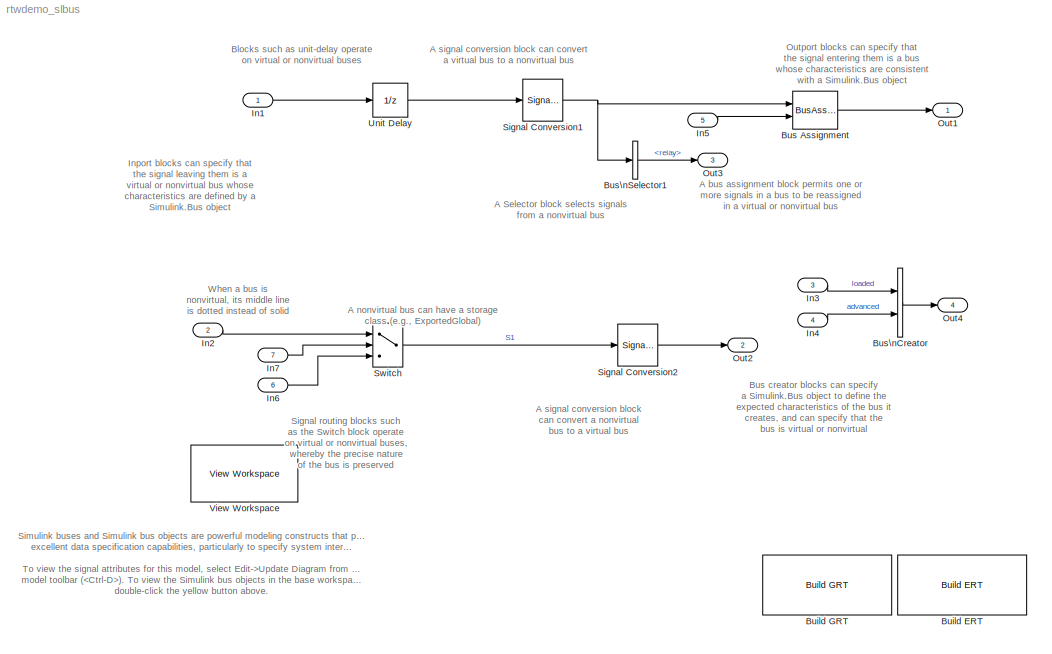
MODEL rtwdemo_slbus
KIND model
CONFIG PostLoadFcn = rtwdemo_slbus_data
BLOCK [Reference] Build ERT  REF=rtwdemowidgets/Build ERT
  Ports = []
  ShowPortLabels = on
  SourceBlock = rtwdemowidgets/Build ERT
  SourceType = Unknown
  attrib_overrides = {}
BLOCK [Reference] Build GRT  REF=rtwdemowidgets/Build GRT
  Ports = []
  ShowPortLabels = on
  SourceBlock = rtwdemowidgets/Build GRT
  SourceType = Unknown
  attrib_overrides = {}
BLOCK [BusAssignment] Bus Assignment
  AssignedSignals = relay
  DialogController = Simulink.DDGSource_Bus
  Ports = [2, 1]
BLOCK [BusCreator] Bus\nCreator
  BusObject = BusObject2
  DialogController = Simulink.DDGSource_Bus
  DisplayOption = bar
  Inputs = 2
  NonVirtualBus = on
  Ports = [2, 1]
  UseBusObject = on
BLOCK [BusSelector] Bus\nSelector1
  DialogController = Simulink.DDGSource_Bus
  OutputSignals = relay
  Ports = [1, 1]
BLOCK [Inport] In1
  BusObject = BusObject1
  IconDisplay = Port number
  LatchInput = off
  Port = 1
  UseBusObject = on
BLOCK [Inport] In2
  BusOutputAsStruct = on
  IconDisplay = Port number
  LatchInput = off
  Port = 2
  UseBusObject = on
BLOCK [Inport] In3
  DataType = boolean
  IconDisplay = Port number
  LatchInput = off
  Port = 3
BLOCK [Inport] In4
  DataType = boolean
  IconDisplay = Port number
  LatchInput = off
  Port = 4
BLOCK [Inport] In5
  DataType = boolean
  IconDisplay = Port number
  LatchInput = off
  Port = 5
BLOCK [Inport] In6
  BusOutputAsStruct = on
  IconDisplay = Port number
  LatchInput = off
  Port = 6
  UseBusObject = on
BLOCK [Inport] In7
  DataType = boolean
  IconDisplay = Port number
  LatchInput = off
  Port = 7
BLOCK [Outport] Out1
  BusObject = BusObject1
  BusOutputAsStruct = off
  IconDisplay = Port number
  UseBusObject = on
BLOCK [Outport] Out2
  BusOutputAsStruct = off
  IconDisplay = Port number
  Port = 2
  UseBusObject = on
BLOCK [Outport] Out3
  BusOutputAsStruct = off
  IconDisplay = Port number
  Port = 3
BLOCK [Outport] Out4
  BusObject = BusObject2
  BusOutputAsStruct = off
  IconDisplay = Port number
  Port = 4
  UseBusObject = on
BLOCK [SignalConversion] Signal Conversion1
  ConversionOutput = Nonvirtual bus
BLOCK [SignalConversion] Signal Conversion2
  ConversionOutput = Virtual bus
BLOCK [Switch] Switch
  Criteria = u2 ~= 0
  InputSameDT = off
  SaturateOnIntegerOverflow = off
  ZeroCross = off
BLOCK [UnitDelay] Unit Delay
BLOCK [Reference] View Workspace  REF=rtwdemowidgets/View Workspace
  Ports = []
  ShowPortLabels = on
  SourceBlock = rtwdemowidgets/View Workspace
  SourceType = Unknown
ANNOTATION (root): A Selector block selects signals\nfrom a nonvirtual bus
ANNOTATION (root): A bus assignment block permits one or\nmore signals in a bus to be reassigned\nin a virtual or nonvirtual bus
ANNOTATION (root): A nonvirtual bus can have a storage\nclass (e.g., ExportedGlobal)
ANNOTATION (root): A signal conversion block can convert\na virtual bus to a nonvirtual bus
ANNOTATION (root): A signal conversion block \ncan convert a nonvirtual \nbus to a virtual bus
ANNOTATION (root): Blocks such as unit-delay operate\non virtual or nonvirtual buses
ANNOTATION (root): Bus creator blocks can specify\na Simulink.Bus object to define the\nexpected characteristics of the bus it\ncreates, and can specify that the\nbus is virtual or nonvirtual
ANNOTATION (root): Inport blocks can specify that \nthe signal leaving them is a \nvirtual or nonvirtual bus whose\ncharacteristics are defined by a \nSimulink.Bus object
ANNOTATION (root): Outport blocks can specify that \nthe signal entering them is a bus \nwhose characteristics are consistent\nwith a Simulink.Bus object
ANNOTATION (root): Signal routing blocks such\nas the Switch block operate\non virtual or nonvirtual buses,\nwhereby the precise nature\nof the bus is preserved
ANNOTATION (root): Simulink buses and Simulink bus objects are powerful modeling constructs that provide\nexcellent data specification capabilities, particularly to specify system interfaces.\n\nTo view the signal attributes for this model, select Edit->Update Diagram from the\nmodel toolbar ( ). To view the Simulink bus objects in the base workspace\ndouble-click the yellow button above.
ANNOTATION (root): When a bus is \nnonvirtual, its middle line \nis dotted instead of solid
LINE Bus Assignment:1 -> Out1:1
LINE Bus\nCreator:1 -> Out4:1
LINE Bus\nSelector1:1 -> Out3:1
LINE In1:1 -> Unit Delay:1
LINE In2:1 -> Switch:1
LINE In3:1 -> Bus\nCreator:1
LINE In4:1 -> Bus\nCreator:2
LINE In5:1 -> Bus Assignment:2
LINE In6:1 -> Switch:3
LINE In7:1 -> Switch:2
NET Signal Conversion1:1 -> Bus Assignment:1, Bus\nSelector1:1
LINE Signal Conversion2:1 -> Out2:1
LINE Switch:1 -> Signal Conversion2:1
LINE Unit Delay:1 -> Signal Conversion1:1
note: NET lines group one-source signal fan-out (src -> all destinations, sorted); 1:1 wires keep LINE
